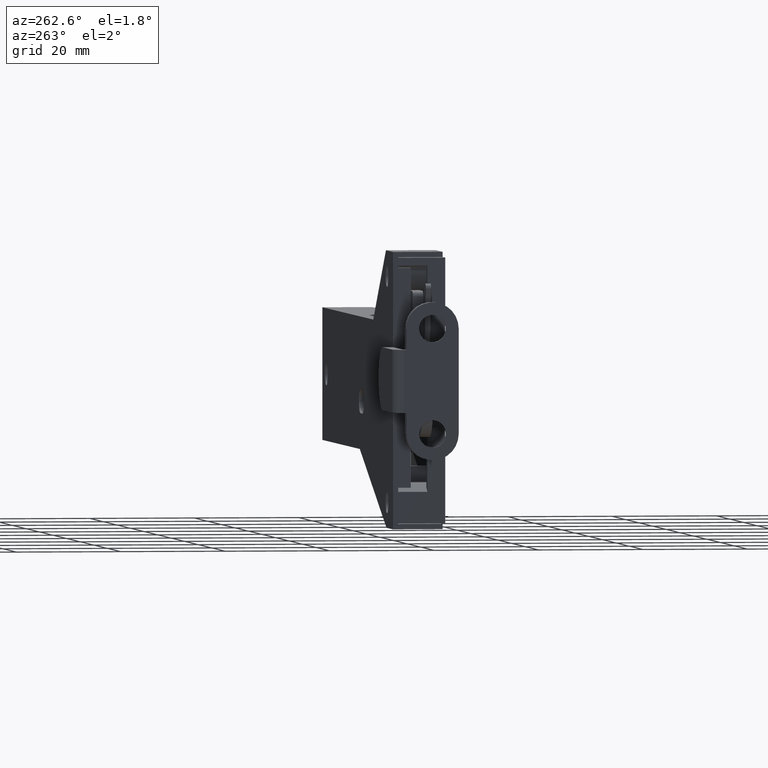
[diagram: clean part render]
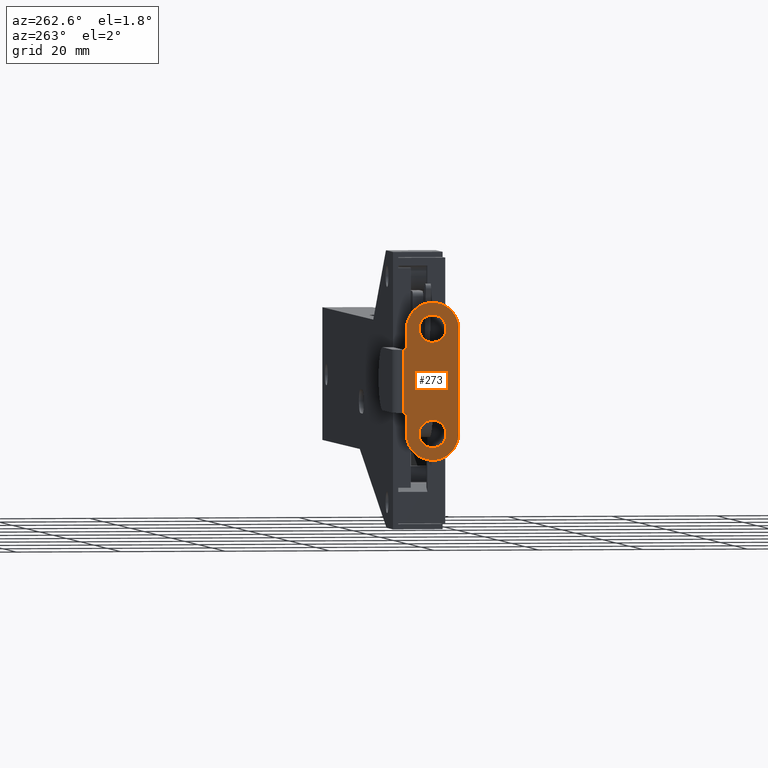
[diagram: same view with one face highlighted and labeled with its STEP entity id]
A machine part, auxiliary view. The second image highlights one B-rep face of the part: STEP entity #273.
In plain terms, the highlighted planar face has unit normal (-1, 0, 0).
Its self-contained STEP definition (entity closure, byte-faithful):
#273=ADVANCED_FACE('',(#911,#912,#913),#910,.T.);
#910=PLANE('',#2439);
#911=FACE_OUTER_BOUND('',#2440,.T.);
#912=FACE_BOUND('',#2441,.T.);
#913=FACE_BOUND('',#2442,.T.);
#2436=CARTESIAN_POINT('',(-1.60000000000E+001,9.50000000000E-001,-1.80000000000E+001));
#2437=DIRECTION('',(-1.00000000000E+000,0.00000000000E+000,0.00000000000E+000));
#2438=DIRECTION('',(0.00000000000E+000,0.00000000000E+000,1.00000000000E+000));
#2439=AXIS2_PLACEMENT_3D('',#2436,#2437,#2438);
#2440=EDGE_LOOP('',(#3421,#3422,#3423,#3424,#3425,#3426,#3427,#3428));
#2441=EDGE_LOOP('',(#3429,#3430));
#2442=EDGE_LOOP('',(#3431,#3432));
#3421=ORIENTED_EDGE('',*,*,#4237,.F.);
#3422=ORIENTED_EDGE('',*,*,#4238,.T.);
#3423=ORIENTED_EDGE('',*,*,#4239,.F.);
#3424=ORIENTED_EDGE('',*,*,#4240,.F.);
#3425=ORIENTED_EDGE('',*,*,#4241,.F.);
#3426=ORIENTED_EDGE('',*,*,#4242,.F.);
#3427=ORIENTED_EDGE('',*,*,#4243,.F.);
#3428=ORIENTED_EDGE('',*,*,#4244,.F.);
#3429=ORIENTED_EDGE('',*,*,#4245,.T.);
#3430=ORIENTED_EDGE('',*,*,#4246,.T.);
#3431=ORIENTED_EDGE('',*,*,#4247,.T.);
#3432=ORIENTED_EDGE('',*,*,#4248,.T.);
#4237=EDGE_CURVE('',#5495,#5496,#5497,.T.);
#4238=EDGE_CURVE('',#5495,#5503,#5504,.T.);
#4239=EDGE_CURVE('',#5510,#5503,#5511,.T.);
#4240=EDGE_CURVE('',#5517,#5510,#5518,.T.);
#4241=EDGE_CURVE('',#5524,#5517,#5525,.T.);
#4242=EDGE_CURVE('',#5531,#5524,#5532,.T.);
#4243=EDGE_CURVE('',#5538,#5531,#5539,.T.);
#4244=EDGE_CURVE('',#5496,#5538,#5545,.T.);
#4245=EDGE_CURVE('',#5551,#5552,#5553,.T.);
#4246=EDGE_CURVE('',#5552,#5551,#5559,.T.);
#4247=EDGE_CURVE('',#5565,#5566,#5567,.T.);
#4248=EDGE_CURVE('',#5566,#5565,#5573,.T.);
#5495=VERTEX_POINT('',#8285);
#5496=VERTEX_POINT('',#8286);
#5497=LINE('',#8287,#8288);
#5503=VERTEX_POINT('',#8290);
#5504=LINE('',#8291,#8292);
#5510=VERTEX_POINT('',#8294);
#5511=LINE('',#8295,#8296);
#5517=VERTEX_POINT('',#8298);
#5518=LINE('',#8299,#8300);
#5524=VERTEX_POINT('',#8302);
#5525=CIRCLE('',#8306,5.00000000000E+000);
#5531=VERTEX_POINT('',#8307);
#5532=LINE('',#8308,#8309);
#5538=VERTEX_POINT('',#8311);
#5539=CIRCLE('',#8315,5.00000000000E+000);
#5545=LINE('',#8316,#8317);
#5551=VERTEX_POINT('',#8319);
#5552=VERTEX_POINT('',#8320);
#5553=CIRCLE('',#8324,2.60000000000E+000);
#5559=CIRCLE('',#8328,2.60000000000E+000);
#5565=VERTEX_POINT('',#8329);
#5566=VERTEX_POINT('',#8330);
#5567=CIRCLE('',#8334,2.60000000000E+000);
#5573=CIRCLE('',#8338,2.60000000000E+000);
#8285=CARTESIAN_POINT('',(-1.60000000000E+001,2.00000000000E+000,-6.00000000000E+000));
#8286=CARTESIAN_POINT('',(-1.60000000000E+001,2.50000000000E+000,-6.00000000000E+000));
#8287=CARTESIAN_POINT('',(-1.60000000000E+001,2.00000000000E+000,-6.00000000000E+000));
#8288=VECTOR('',#8289,4.99999999998E-001);
#8289=DIRECTION('',(0.00000000000E+000,1.00000000000E+000,0.00000000000E+000));
#8290=CARTESIAN_POINT('',(-1.60000000000E+001,2.00000000000E+000,6.00000000000E+000));
#8291=CARTESIAN_POINT('',(-1.60000000000E+001,2.00000000000E+000,-6.00000000000E+000));
#8292=VECTOR('',#8293,1.20000000000E+001);
#8293=DIRECTION('',(0.00000000000E+000,0.00000000000E+000,1.00000000000E+000));
#8294=CARTESIAN_POINT('',(-1.60000000000E+001,2.50000000000E+000,6.00000000000E+000));
#8295=CARTESIAN_POINT('',(-1.60000000000E+001,2.50000000000E+000,6.00000000000E+000));
#8296=VECTOR('',#8297,4.99999999998E-001);
#8297=DIRECTION('',(0.00000000000E+000,-1.00000000000E+000,0.00000000000E+000));
#8298=CARTESIAN_POINT('',(-1.60000000000E+001,2.50000000000E+000,1.00000000000E+001));
#8299=CARTESIAN_POINT('',(-1.60000000000E+001,2.50000000000E+000,1.00000000000E+001));
#8300=VECTOR('',#8301,4.00000000000E+000);
#8301=DIRECTION('',(0.00000000000E+000,-1.27897692437E-013,-1.00000000000E+000));
#8302=CARTESIAN_POINT('',(-1.60000000000E+001,1.25000000000E+001,1.00000000000E+001));
#8303=CARTESIAN_POINT('',(-1.60000000000E+001,7.50000000000E+000,1.00000000000E+001));
#8304=DIRECTION('',(1.00000000000E+000,0.00000000000E+000,-0.00000000000E+000));
#8305=DIRECTION('',(-0.00000000000E+000,-0.00000000000E+000,-1.00000000000E+000));
#8306=AXIS2_PLACEMENT_3D('',#8303,#8304,#8305);
#8307=CARTESIAN_POINT('',(-1.60000000000E+001,1.25000000000E+001,-1.00000000000E+001));
#8308=CARTESIAN_POINT('',(-1.60000000000E+001,1.25000000000E+001,-1.00000000000E+001));
#8309=VECTOR('',#8310,2.00000000000E+001);
#8310=DIRECTION('',(0.00000000000E+000,0.00000000000E+000,1.00000000000E+000));
#8311=CARTESIAN_POINT('',(-1.60000000000E+001,2.50000000000E+000,-1.00000000000E+001));
#8312=CARTESIAN_POINT('',(-1.60000000000E+001,7.50000000000E+000,-1.00000000000E+001));
#8313=DIRECTION('',(1.00000000000E+000,-0.00000000000E+000,0.00000000000E+000));
#8314=DIRECTION('',(0.00000000000E+000,1.00000000000E+000,1.83690953073E-016));
#8315=AXIS2_PLACEMENT_3D('',#8312,#8313,#8314);
#8316=CARTESIAN_POINT('',(-1.60000000000E+001,2.50000000000E+000,-6.00000000000E+000));
#8317=VECTOR('',#8318,4.00000000000E+000);
#8318=DIRECTION('',(0.00000000000E+000,1.27897692437E-013,-1.00000000000E+000));
#8319=CARTESIAN_POINT('',(-1.60000000000E+001,7.50000000000E+000,-7.40000000000E+000));
#8320=CARTESIAN_POINT('',(-1.60000000000E+001,7.50000000000E+000,-1.26000000000E+001));
#8321=CARTESIAN_POINT('',(-1.60000000000E+001,7.50000000000E+000,-1.00000000000E+001));
#8322=DIRECTION('',(1.00000000000E+000,0.00000000000E+000,-0.00000000000E+000));
#8323=DIRECTION('',(0.00000000000E+000,-1.22460635382E-016,1.00000000000E+000));
#8324=AXIS2_PLACEMENT_3D('',#8321,#8322,#8323);
#8325=CARTESIAN_POINT('',(-1.60000000000E+001,7.50000000000E+000,-1.00000000000E+001));
#8326=DIRECTION('',(1.00000000000E+000,0.00000000000E+000,-0.00000000000E+000));
#8327=DIRECTION('',(0.00000000000E+000,-1.22460635382E-016,1.00000000000E+000));
#8328=AXIS2_PLACEMENT_3D('',#8325,#8326,#8327);
#8329=CARTESIAN_POINT('',(-1.60000000000E+001,7.50000000000E+000,1.26000000000E+001));
#8330=CARTESIAN_POINT('',(-1.60000000000E+001,7.50000000000E+000,7.40000000000E+000));
#8331=CARTESIAN_POINT('',(-1.60000000000E+001,7.50000000000E+000,1.00000000000E+001));
#8332=DIRECTION('',(1.00000000000E+000,0.00000000000E+000,-0.00000000000E+000));
#8333=DIRECTION('',(0.00000000000E+000,-1.22460635382E-016,1.00000000000E+000));
#8334=AXIS2_PLACEMENT_3D('',#8331,#8332,#8333);
#8335=CARTESIAN_POINT('',(-1.60000000000E+001,7.50000000000E+000,1.00000000000E+001));
#8336=DIRECTION('',(1.00000000000E+000,0.00000000000E+000,-0.00000000000E+000));
#8337=DIRECTION('',(0.00000000000E+000,-1.22460635382E-016,1.00000000000E+000));
#8338=AXIS2_PLACEMENT_3D('',#8335,#8336,#8337);